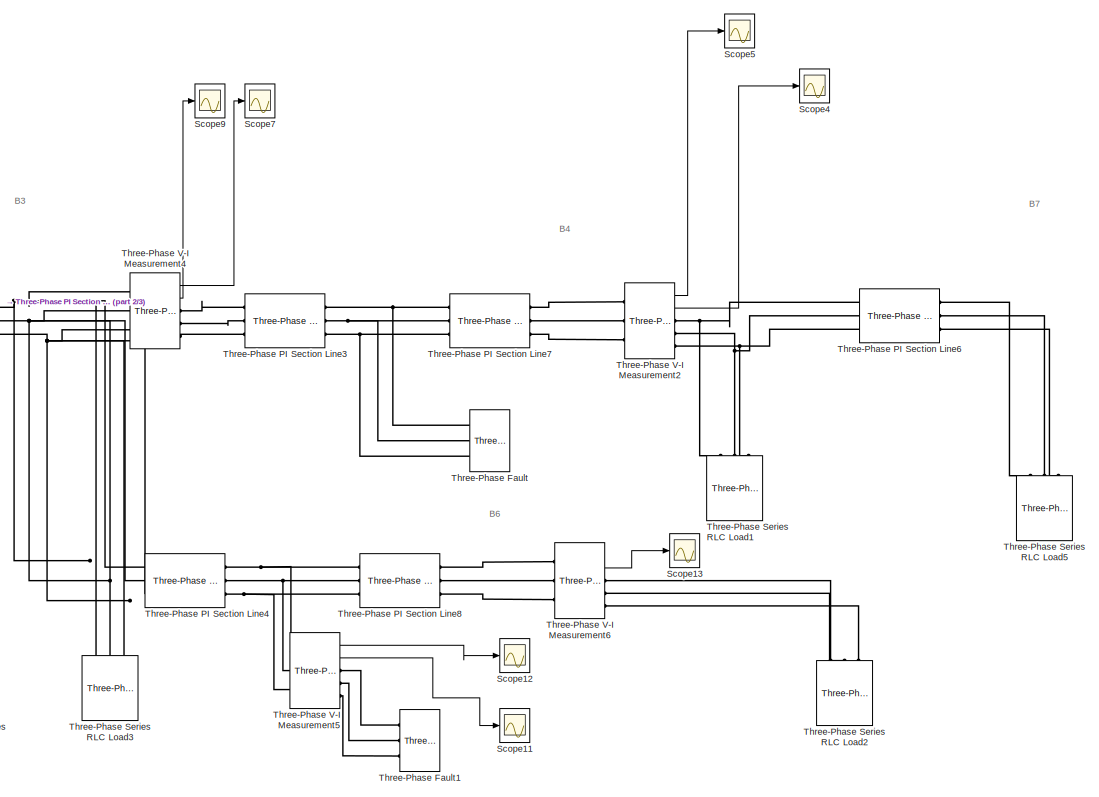
[diagram: root canvas - part 1/3, right side, full height]
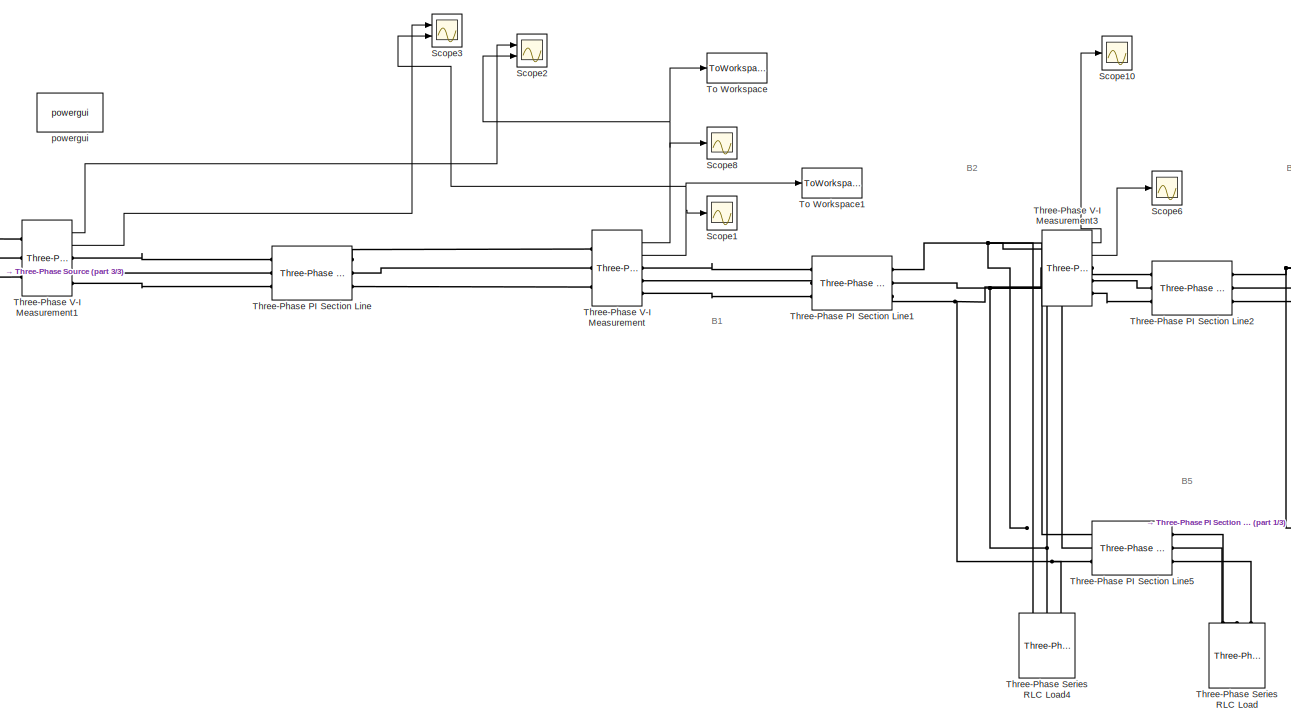
[diagram: root canvas - part 2/3, center side, full height]
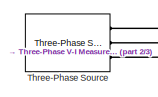
[diagram: root canvas - part 3/3, middle left region]
MODEL slx_acf07688941c
KIND model
CONFIG AbsTol = auto
CONFIG FixedStep = auto
CONFIG MaxStep = auto
CONFIG MinStep = auto
CONFIG RelTol = 1e-3
CONFIG SampleTimeConstraint = Unconstrained
CONFIG Solver = ode45
CONFIG SolverMode = Auto
CONFIG SolverName = ode45
CONFIG StartTime = 0.0
CONFIG StopTime = 0.16
BLOCK [Scope] Scope1
  Floating = off
  LimitDataPoints = off
  NumInputPorts = 1
  Ports = [1]
  TimeRange = 0.16
  YMax = 20000
  YMin = -20000
  ZoomMode = yonly
BLOCK [Scope] Scope10
  Floating = off
  LimitDataPoints = off
  NumInputPorts = 1
  Ports = [1]
  SaveName = ScopeData9
  YMax = 20000
  YMin = -20000
  ZoomMode = yonly
BLOCK [Scope] Scope11
  Floating = off
  LimitDataPoints = off
  NumInputPorts = 1
  Ports = [1]
  SaveName = ScopeData10
  YMax = 20000
  YMin = -20000
  ZoomMode = yonly
BLOCK [Scope] Scope12
  Floating = off
  LimitDataPoints = off
  NumInputPorts = 1
  Ports = [1]
  SaveName = ScopeData11
  YMax = 20000
  YMin = -20000
  ZoomMode = yonly
BLOCK [Scope] Scope13
  Floating = off
  LimitDataPoints = off
  NumInputPorts = 1
  Ports = [1]
  SaveName = ScopeData12
  YMax = 20000
  YMin = -20000
  ZoomMode = yonly
BLOCK [Scope] Scope2
  Floating = off
  LimitDataPoints = off
  NumInputPorts = 2
  Ports = [2]
  SaveName = ScopeData1
  YMax = 20000~5
  YMin = -20000~-5
  ZoomMode = yonly
BLOCK [Scope] Scope3
  Floating = off
  LimitDataPoints = off
  NumInputPorts = 2
  Ports = [2]
  SaveName = ScopeData2
  YMax = 20000~5
  YMin = -20000~-5
  ZoomMode = yonly
BLOCK [Scope] Scope4
  Floating = off
  LimitDataPoints = off
  NumInputPorts = 1
  Ports = [1]
  SaveName = ScopeData3
  YMax = 20000
  YMin = -20000
  ZoomMode = yonly
BLOCK [Scope] Scope5
  Floating = off
  LimitDataPoints = off
  NumInputPorts = 1
  Ports = [1]
  SaveName = ScopeData4
  YMax = 20000
  YMin = -20000
  ZoomMode = yonly
BLOCK [Scope] Scope6
  Floating = off
  LimitDataPoints = off
  NumInputPorts = 1
  Ports = [1]
  SaveName = ScopeData5
  YMax = 20000
  YMin = -20000
  ZoomMode = yonly
BLOCK [Scope] Scope7
  Floating = off
  LimitDataPoints = off
  NumInputPorts = 1
  Ports = [1]
  SaveName = ScopeData6
  YMax = 20000
  YMin = -20000
  ZoomMode = yonly
BLOCK [Scope] Scope8
  Floating = off
  LimitDataPoints = off
  NumInputPorts = 1
  Ports = [1]
  SaveName = ScopeData8
  YMax = 20000
  YMin = -20000
BLOCK [Scope] Scope9
  Floating = off
  LimitDataPoints = off
  NumInputPorts = 1
  Ports = [1]
  SaveName = ScopeData7
  YMax = 20000
  YMin = -20000
  ZoomMode = yonly
BLOCK [Reference] Three-Phase Fault  REF=powerlib/Elements/Three-Phase Fault
  External = off
  FaultA = off
  FaultB = off
  FaultC = off
  FaultResistance = 3
  GroundFault = off
  GroundResistance = 0.01
  InitialStates = 0
  Measurements = None
  Ports = [0, 0, 0, 0, 0, 3]
  SnubberCapacitance = inf
  SnubberResistance = 1e6
  SourceBlock = powerlib/Elements/Three-Phase Fault
  SourceType = Three-Phase Fault
  SwitchStatus = NaN
  SwitchTimes = [5/60  9/60]
BLOCK [Reference] Three-Phase Fault1  REF=powerlib/Elements/Three-Phase Fault
  External = off
  FaultA = on
  FaultB = off
  FaultC = off
  FaultResistance = 500
  GroundFault = on
  GroundResistance = 0.01
  InitialStates = 0
  Measurements = None
  Ports = [0, 0, 0, 0, 0, 3]
  SnubberCapacitance = inf
  SnubberResistance = 1e6
  SourceBlock = powerlib/Elements/Three-Phase Fault
  SourceType = Three-Phase Fault
  SwitchStatus = NaN
  SwitchTimes = [5/60  9/60]
BLOCK [Reference] Three-Phase PI Section Line  REF=powerlib/Elements/Three-Phase
PI Section Line
  AttributesFormatString = \n
  Capacitances = [7.4e-19 3.8e-19]
  Frequency = 60
  Inductances = [ 0.9337e-3  4.1264e-3]
  LConnTagsString = a|b|c
  Length = 1
  Ports = [0, 0, 0, 0, 0, 3, 3]
  RConnTagsString = A|B|C
  Resistances = [ 0.01273 0.3864]
  SourceBlock = powerlib/Elements/Three-Phase\nPI Section Line
  SourceType = Three-Phase PI Section Line
BLOCK [Reference] Three-Phase PI Section Line1  REF=powerlib/Elements/Three-Phase
PI Section Line
  AttributesFormatString = \n
  Capacitances = [12.74e-19 7.751e-19]
  Frequency = 60
  Inductances = [ 0.9337e-3  4.1264e-3]
  LConnTagsString = a|b|c
  Length = 30
  Ports = [0, 0, 0, 0, 0, 3, 3]
  RConnTagsString = A|B|C
  Resistances = [ 0.01273 0.3864]
  SourceBlock = powerlib/Elements/Three-Phase\nPI Section Line
  SourceType = Three-Phase PI Section Line
BLOCK [Reference] Three-Phase PI Section Line2  REF=powerlib/Elements/Three-Phase
PI Section Line
  AttributesFormatString = \n
  Capacitances = [12.74e-19 7.751e-19]
  Frequency = 60
  Inductances = [ 0.9337e-3  4.1264e-3]
  LConnTagsString = a|b|c
  Length = 15
  Ports = [0, 0, 0, 0, 0, 3, 3]
  RConnTagsString = A|B|C
  Resistances = [ 0.01273 0.3864]
  SourceBlock = powerlib/Elements/Three-Phase\nPI Section Line
  SourceType = Three-Phase PI Section Line
BLOCK [Reference] Three-Phase PI Section Line3  REF=powerlib/Elements/Three-Phase
PI Section Line
  AttributesFormatString = \n
  Capacitances = [12.74e-19 7.751e-19]
  Frequency = 60
  Inductances = [ 0.9337e-3  4.1264e-3]
  LConnTagsString = a|b|c
  Length = 5
  Ports = [0, 0, 0, 0, 0, 3, 3]
  RConnTagsString = A|B|C
  Resistances = [ 0.01273 0.3864]
  SourceBlock = powerlib/Elements/Three-Phase\nPI Section Line
  SourceType = Three-Phase PI Section Line
BLOCK [Reference] Three-Phase PI Section Line4  REF=powerlib/Elements/Three-Phase
PI Section Line
  AttributesFormatString = \n
  Capacitances = [12.74e-19 7.751e-19]
  Frequency = 60
  Inductances = [ 0.9337e-3  4.1264e-3]
  LConnTagsString = a|b|c
  Length = 15
  Ports = [0, 0, 0, 0, 0, 3, 3]
  RConnTagsString = A|B|C
  Resistances = [ 0.01273 0.3864]
  SourceBlock = powerlib/Elements/Three-Phase\nPI Section Line
  SourceType = Three-Phase PI Section Line
BLOCK [Reference] Three-Phase PI Section Line5  REF=powerlib/Elements/Three-Phase
PI Section Line
  AttributesFormatString = \n
  Capacitances = [12.74e-19 7.751e-19]
  Frequency = 60
  Inductances = [ 0.9337e-3  4.1264e-3]
  LConnTagsString = a|b|c
  Length = 8
  Ports = [0, 0, 0, 0, 0, 3, 3]
  RConnTagsString = A|B|C
  Resistances = [ 0.01273 0.3864]
  SourceBlock = powerlib/Elements/Three-Phase\nPI Section Line
  SourceType = Three-Phase PI Section Line
BLOCK [Reference] Three-Phase PI Section Line6  REF=powerlib/Elements/Three-Phase
PI Section Line
  AttributesFormatString = \n
  Capacitances = [12.74e-19 7.751e-19]
  Frequency = 60
  Inductances = [ 0.9337e-3  4.1264e-3]
  LConnTagsString = a|b|c
  Length = 19
  Ports = [0, 0, 0, 0, 0, 3, 3]
  RConnTagsString = A|B|C
  Resistances = [ 0.01273 0.3864]
  SourceBlock = powerlib/Elements/Three-Phase\nPI Section Line
  SourceType = Three-Phase PI Section Line
BLOCK [Reference] Three-Phase PI Section Line7  REF=powerlib/Elements/Three-Phase
PI Section Line
  AttributesFormatString = \n
  Capacitances = [12.74e-19 7.751e-19]
  Frequency = 60
  Inductances = [ 0.9337e-3  4.1264e-3]
  LConnTagsString = a|b|c
  Length = 5
  Ports = [0, 0, 0, 0, 0, 3, 3]
  RConnTagsString = A|B|C
  Resistances = [ 0.01273 0.3864]
  SourceBlock = powerlib/Elements/Three-Phase\nPI Section Line
  SourceType = Three-Phase PI Section Line
BLOCK [Reference] Three-Phase PI Section Line8  REF=powerlib/Elements/Three-Phase
PI Section Line
  AttributesFormatString = \n
  Capacitances = [12.74e-19 7.751e-19]
  Frequency = 60
  Inductances = [ 0.9337e-3  4.1264e-3]
  LConnTagsString = a|b|c
  Length = 5
  Ports = [0, 0, 0, 0, 0, 3, 3]
  RConnTagsString = A|B|C
  Resistances = [ 0.01273 0.3864]
  SourceBlock = powerlib/Elements/Three-Phase\nPI Section Line
  SourceType = Three-Phase PI Section Line
BLOCK [Reference] Three-Phase Series RLC Load  REF=powerlib/Elements/Three-Phase
Series RLC Load
  ActivePower = 8e3
  AttributesFormatString = \n
  CapacitivePower = 0
  Configuration = Y (grounded)
  InductivePower = 100
  LConnTagsString = A|B|C
  LoadType = constant Z
  Measurements = None
  NominalFrequency = 60
  NominalVoltage = 14300
  Ports = [0, 0, 0, 0, 0, 3]
  SourceBlock = powerlib/Elements/Three-Phase\nSeries RLC Load
  SourceType = Three-Phase Series RLC Load
BLOCK [Reference] Three-Phase Series RLC Load1  REF=powerlib/Elements/Three-Phase
Series RLC Load
  ActivePower = 8e3
  AttributesFormatString = \n
  CapacitivePower = 0
  Configuration = Y (grounded)
  InductivePower = 100
  LConnTagsString = A|B|C
  LoadType = constant Z
  Measurements = None
  NominalFrequency = 60
  NominalVoltage = 14300
  Ports = [0, 0, 0, 0, 0, 3]
  SourceBlock = powerlib/Elements/Three-Phase\nSeries RLC Load
  SourceType = Three-Phase Series RLC Load
BLOCK [Reference] Three-Phase Series RLC Load2  REF=powerlib/Elements/Three-Phase
Series RLC Load
  ActivePower = 8e3
  AttributesFormatString = \n
  CapacitivePower = 0
  Configuration = Y (grounded)
  InductivePower = 100
  LConnTagsString = A|B|C
  LoadType = constant Z
  Measurements = None
  NominalFrequency = 60
  NominalVoltage = 14300
  Ports = [0, 0, 0, 0, 0, 3]
  SourceBlock = powerlib/Elements/Three-Phase\nSeries RLC Load
  SourceType = Three-Phase Series RLC Load
BLOCK [Reference] Three-Phase Series RLC Load3  REF=powerlib/Elements/Three-Phase
Series RLC Load
  ActivePower = 8e3
  AttributesFormatString = \n
  CapacitivePower = 0
  Configuration = Y (grounded)
  InductivePower = 100
  LConnTagsString = A|B|C
  LoadType = constant Z
  Measurements = None
  NominalFrequency = 60
  NominalVoltage = 14300
  Ports = [0, 0, 0, 0, 0, 3]
  SourceBlock = powerlib/Elements/Three-Phase\nSeries RLC Load
  SourceType = Three-Phase Series RLC Load
BLOCK [Reference] Three-Phase Series RLC Load4  REF=powerlib/Elements/Three-Phase
Series RLC Load
  ActivePower = 8e3
  AttributesFormatString = \n
  CapacitivePower = 0
  Configuration = Y (grounded)
  InductivePower = 100
  LConnTagsString = A|B|C
  LoadType = constant Z
  Measurements = None
  NominalFrequency = 60
  NominalVoltage = 14300
  Ports = [0, 0, 0, 0, 0, 3]
  SourceBlock = powerlib/Elements/Three-Phase\nSeries RLC Load
  SourceType = Three-Phase Series RLC Load
BLOCK [Reference] Three-Phase Series RLC Load5  REF=powerlib/Elements/Three-Phase
Series RLC Load
  ActivePower = 8e3
  AttributesFormatString = \n
  CapacitivePower = 0
  Configuration = Y (grounded)
  InductivePower = 100
  LConnTagsString = A|B|C
  LoadType = constant Z
  Measurements = None
  NominalFrequency = 60
  NominalVoltage = 14300
  Ports = [0, 0, 0, 0, 0, 3]
  SourceBlock = powerlib/Elements/Three-Phase\nSeries RLC Load
  SourceType = Three-Phase Series RLC Load
BLOCK [Reference] Three-Phase Source  REF=powerlib/Electrical
Sources/Three-Phase Source
  BaseVoltage = 115000
  BusType = swing
  Frequency = 60
  Inductance = 16.58e-3
  InternalConnection = Yg
  PhaseAngle = 0
  Ports = [0, 0, 0, 0, 0, 0, 3]
  Pref = 0
  Qmax = inf
  Qmin = -inf
  Qref = 0
  Resistance = 0.8929
  ShortCircuitLevel = 100e6
  SourceBlock = powerlib/Electrical\nSources/Three-Phase Source
  SourceType = Three-Phase Source
  SpecifyImpedance = on
  Voltage = 14300
  XRratio = 7
BLOCK [Reference] Three-Phase V-I Measurement  REF=powerlib/Measurements/Three-Phase
V-I Measurement
  CurrentMeasurement = yes
  Ipu = off
  LabelI = Iabc
  LabelV = Vabc
  OutputType = Complex
  PSBequivalent = 0
  Pbase = 100e6
  PhasorSimulation = off
  Ports = [0, 2, 0, 0, 0, 3, 3]
  SetLabelI = off
  SetLabelV = off
  SourceBlock = powerlib/Measurements/Three-Phase\nV-I Measurement
  SourceType = Three-Phase VI Measurement
  Vbase = 500e3
  VoltageMeasurement = phase-to-ground
  Vpu = off
  VpuLL = off
BLOCK [Reference] Three-Phase V-I Measurement1  REF=powerlib/Measurements/Three-Phase
V-I Measurement
  CurrentMeasurement = yes
  Ipu = off
  LabelI = Iabc
  LabelV = Vabc
  OutputType = Complex
  PSBequivalent = 0
  Pbase = 100e6
  PhasorSimulation = off
  Ports = [0, 2, 0, 0, 0, 3, 3]
  SetLabelI = off
  SetLabelV = off
  SourceBlock = powerlib/Measurements/Three-Phase\nV-I Measurement
  SourceType = Three-Phase VI Measurement
  Vbase = 500e3
  VoltageMeasurement = phase-to-ground
  Vpu = off
  VpuLL = off
BLOCK [Reference] Three-Phase V-I Measurement2  REF=powerlib/Measurements/Three-Phase
V-I Measurement
  CurrentMeasurement = yes
  Ipu = off
  LabelI = Iabc
  LabelV = Vabc
  OutputType = Complex
  PSBequivalent = 0
  Pbase = 100e6
  PhasorSimulation = off
  Ports = [0, 2, 0, 0, 0, 3, 3]
  SetLabelI = off
  SetLabelV = off
  SourceBlock = powerlib/Measurements/Three-Phase\nV-I Measurement
  SourceType = Three-Phase VI Measurement
  Vbase = 500e3
  VoltageMeasurement = phase-to-ground
  Vpu = off
  VpuLL = off
BLOCK [Reference] Three-Phase V-I Measurement3  REF=powerlib/Measurements/Three-Phase
V-I Measurement
  CurrentMeasurement = yes
  Ipu = off
  LabelI = Iabc
  LabelV = Vabc
  OutputType = Complex
  PSBequivalent = 0
  Pbase = 100e6
  PhasorSimulation = off
  Ports = [0, 2, 0, 0, 0, 3, 3]
  SetLabelI = off
  SetLabelV = off
  SourceBlock = powerlib/Measurements/Three-Phase\nV-I Measurement
  SourceType = Three-Phase VI Measurement
  Vbase = 500e3
  VoltageMeasurement = phase-to-ground
  Vpu = off
  VpuLL = off
BLOCK [Reference] Three-Phase V-I Measurement4  REF=powerlib/Measurements/Three-Phase
V-I Measurement
  CurrentMeasurement = yes
  Ipu = off
  LabelI = Iabc
  LabelV = Vabc
  OutputType = Complex
  PSBequivalent = 0
  Pbase = 100e6
  PhasorSimulation = off
  Ports = [0, 2, 0, 0, 0, 3, 3]
  SetLabelI = off
  SetLabelV = off
  SourceBlock = powerlib/Measurements/Three-Phase\nV-I Measurement
  SourceType = Three-Phase VI Measurement
  Vbase = 500e3
  VoltageMeasurement = phase-to-ground
  Vpu = off
  VpuLL = off
BLOCK [Reference] Three-Phase V-I Measurement5  REF=powerlib/Measurements/Three-Phase
V-I Measurement
  CurrentMeasurement = yes
  Ipu = off
  LabelI = Iabc
  LabelV = Vabc
  OutputType = Complex
  PSBequivalent = 0
  Pbase = 100e6
  PhasorSimulation = off
  Ports = [0, 2, 0, 0, 0, 3, 3]
  SetLabelI = off
  SetLabelV = off
  SourceBlock = powerlib/Measurements/Three-Phase\nV-I Measurement
  SourceType = Three-Phase VI Measurement
  Vbase = 500e3
  VoltageMeasurement = phase-to-phase
  Vpu = off
  VpuLL = off
BLOCK [Reference] Three-Phase V-I Measurement6  REF=powerlib/Measurements/Three-Phase
V-I Measurement
  CurrentMeasurement = yes
  Ipu = off
  LabelI = Iabc
  LabelV = Vabc
  OutputType = Complex
  PSBequivalent = 0
  Pbase = 100e6
  PhasorSimulation = off
  Ports = [0, 2, 0, 0, 0, 3, 3]
  SetLabelI = off
  SetLabelV = off
  SourceBlock = powerlib/Measurements/Three-Phase\nV-I Measurement
  SourceType = Three-Phase VI Measurement
  Vbase = 500e3
  VoltageMeasurement = phase-to-phase
  Vpu = off
  VpuLL = off
BLOCK [ToWorkspace] To Workspace
  FixptAsFi = on
  MaxDataPoints = inf
  Ports = [1]
  SampleTime = -1
  VariableName = V
BLOCK [ToWorkspace] To Workspace1
  FixptAsFi = on
  MaxDataPoints = inf
  Ports = [1]
  SampleTime = -1
  VariableName = I
BLOCK [Reference] powergui  REF=powerlib/powergui
  DisableRonSwitches = off
  DisableSnubberDevices = off
  DisableVfSwitches = off
  DisplayEquations = off
  DisplayStyle = 1
  EnableUseOfTLC = off
  ErrMax = 1e-4
  Frange = [0:2:500]
  FreqAxis = off
  FunctionMessages = off
  HookPort = off
  Interpol = off
  Iterations = 50
  MaxFrequency = 1000
  Pbase = 100e6
  Ports = []
  Priority = 1
  ResistiveCurrentMeasurement = off
  RestoreLinks = warning
  RmsSteady = 1
  SPID = off
  SampleTime = 1/(60*32)
  ShowGrid = off
  SolverType = Tustin
  SourceBlock = powerlib/powergui
  SourceType = PSB option menu block
  StartTime = 0.0
  SwTol = 0
  Ts = 0
  UnitsV = kV
  UnitsW = MW
  UserDataPersistent = on
  Xlog = on
  Ylog = off
  ZoomFFT = off
  buscounter = 0
  cycles = 1
  display = off
  echomessages = off
  frequency = 60
  frequencyindice = 60
  frequencyindicesteady = 1
  fundamental = 60
  methode = off
  save = off
  structure = 0
  variable = ZData
  x0status = blocks
ANNOTATION (root): B1
ANNOTATION (root): B2
ANNOTATION (root): B3
ANNOTATION (root): B4
ANNOTATION (root): B5
ANNOTATION (root): B6
ANNOTATION (root): B7
LINE Three-Phase V-I Measurement1:1 -> Scope2:1
LINE Three-Phase V-I Measurement1:2 -> Scope3:1
LINE Three-Phase V-I Measurement2:1 -> Scope5:1
LINE Three-Phase V-I Measurement2:2 -> Scope4:1
LINE Three-Phase V-I Measurement3:1 -> Scope10:1
LINE Three-Phase V-I Measurement3:2 -> Scope6:1
LINE Three-Phase V-I Measurement4:1 -> Scope7:1
LINE Three-Phase V-I Measurement4:2 -> Scope9:1
LINE Three-Phase V-I Measurement5:1 -> Scope12:1
LINE Three-Phase V-I Measurement5:2 -> Scope11:1
LINE Three-Phase V-I Measurement6:2 -> Scope13:1
NET Three-Phase V-I Measurement:1 -> Scope2:2, Scope8:1, To Workspace:1
NET Three-Phase V-I Measurement:2 -> Scope1:1, Scope3:2, To Workspace1:1
PLINE Three-Phase Fault1:LConn1 -- Three-Phase V-I Measurement5:RConn1
PLINE Three-Phase Fault1:LConn2 -- Three-Phase V-I Measurement5:RConn2
PLINE Three-Phase Fault1:LConn3 -- Three-Phase V-I Measurement5:RConn3
PNET net1: Three-Phase Fault:LConn1 -- Three-Phase PI Section Line3:RConn1 -- Three-Phase PI Section Line7:LConn1
PNET net2: Three-Phase Fault:LConn2 -- Three-Phase PI Section Line3:RConn2 -- Three-Phase PI Section Line7:LConn2
PNET net3: Three-Phase Fault:LConn3 -- Three-Phase PI Section Line3:RConn3 -- Three-Phase PI Section Line7:LConn3
PLINE Three-Phase PI Section Line1:LConn1 -- Three-Phase V-I Measurement:RConn1
PLINE Three-Phase PI Section Line1:LConn2 -- Three-Phase V-I Measurement:RConn2
PLINE Three-Phase PI Section Line1:LConn3 -- Three-Phase V-I Measurement:RConn3
PNET net4: Three-Phase PI Section Line1:RConn1 -- Three-Phase PI Section Line5:LConn1 -- Three-Phase Series RLC Load4:LConn1 -- Three-Phase V-I Measurement3:LConn1
PNET net5: Three-Phase PI Section Line1:RConn2 -- Three-Phase PI Section Line5:LConn2 -- Three-Phase Series RLC Load4:LConn2 -- Three-Phase V-I Measurement3:LConn2
PNET net6: Three-Phase PI Section Line1:RConn3 -- Three-Phase PI Section Line5:LConn3 -- Three-Phase Series RLC Load4:LConn3 -- Three-Phase V-I Measurement3:LConn3
PLINE Three-Phase PI Section Line2:LConn1 -- Three-Phase V-I Measurement3:RConn1
PLINE Three-Phase PI Section Line2:LConn2 -- Three-Phase V-I Measurement3:RConn2
PLINE Three-Phase PI Section Line2:LConn3 -- Three-Phase V-I Measurement3:RConn3
PNET net7: Three-Phase PI Section Line2:RConn1 -- Three-Phase PI Section Line4:LConn1 -- Three-Phase Series RLC Load3:LConn1 -- Three-Phase V-I Measurement4:LConn1
PNET net8: Three-Phase PI Section Line2:RConn2 -- Three-Phase PI Section Line4:LConn2 -- Three-Phase Series RLC Load3:LConn2 -- Three-Phase V-I Measurement4:LConn2
PNET net9: Three-Phase PI Section Line2:RConn3 -- Three-Phase PI Section Line4:LConn3 -- Three-Phase Series RLC Load3:LConn3 -- Three-Phase V-I Measurement4:LConn3
PLINE Three-Phase PI Section Line3:LConn1 -- Three-Phase V-I Measurement4:RConn1
PLINE Three-Phase PI Section Line3:LConn2 -- Three-Phase V-I Measurement4:RConn2
PLINE Three-Phase PI Section Line3:LConn3 -- Three-Phase V-I Measurement4:RConn3
PNET net10: Three-Phase PI Section Line4:RConn1 -- Three-Phase PI Section Line8:LConn1 -- Three-Phase V-I Measurement5:LConn1
PNET net11: Three-Phase PI Section Line4:RConn2 -- Three-Phase PI Section Line8:LConn2 -- Three-Phase V-I Measurement5:LConn2
PNET net12: Three-Phase PI Section Line4:RConn3 -- Three-Phase PI Section Line8:LConn3 -- Three-Phase V-I Measurement5:LConn3
PLINE Three-Phase PI Section Line5:RConn1 -- Three-Phase Series RLC Load:LConn1
PLINE Three-Phase PI Section Line5:RConn2 -- Three-Phase Series RLC Load:LConn2
PLINE Three-Phase PI Section Line5:RConn3 -- Three-Phase Series RLC Load:LConn3
PNET net13: Three-Phase PI Section Line6:LConn1 -- Three-Phase Series RLC Load1:LConn1 -- Three-Phase V-I Measurement2:RConn1
PNET net14: Three-Phase PI Section Line6:LConn2 -- Three-Phase Series RLC Load1:LConn2 -- Three-Phase V-I Measurement2:RConn2
PNET net15: Three-Phase PI Section Line6:LConn3 -- Three-Phase Series RLC Load1:LConn3 -- Three-Phase V-I Measurement2:RConn3
PLINE Three-Phase PI Section Line6:RConn1 -- Three-Phase Series RLC Load5:LConn1
PLINE Three-Phase PI Section Line6:RConn2 -- Three-Phase Series RLC Load5:LConn2
PLINE Three-Phase PI Section Line6:RConn3 -- Three-Phase Series RLC Load5:LConn3
PLINE Three-Phase PI Section Line7:RConn1 -- Three-Phase V-I Measurement2:LConn1
PLINE Three-Phase PI Section Line7:RConn2 -- Three-Phase V-I Measurement2:LConn2
PLINE Three-Phase PI Section Line7:RConn3 -- Three-Phase V-I Measurement2:LConn3
PLINE Three-Phase PI Section Line8:RConn1 -- Three-Phase V-I Measurement6:LConn1
PLINE Three-Phase PI Section Line8:RConn2 -- Three-Phase V-I Measurement6:LConn2
PLINE Three-Phase PI Section Line8:RConn3 -- Three-Phase V-I Measurement6:LConn3
PLINE Three-Phase PI Section Line:LConn1 -- Three-Phase V-I Measurement1:RConn1
PLINE Three-Phase PI Section Line:LConn2 -- Three-Phase V-I Measurement1:RConn2
PLINE Three-Phase PI Section Line:LConn3 -- Three-Phase V-I Measurement1:RConn3
PLINE Three-Phase PI Section Line:RConn1 -- Three-Phase V-I Measurement:LConn1
PLINE Three-Phase PI Section Line:RConn2 -- Three-Phase V-I Measurement:LConn2
PLINE Three-Phase PI Section Line:RConn3 -- Three-Phase V-I Measurement:LConn3
PLINE Three-Phase Series RLC Load2:LConn1 -- Three-Phase V-I Measurement6:RConn1
PLINE Three-Phase Series RLC Load2:LConn2 -- Three-Phase V-I Measurement6:RConn2
PLINE Three-Phase Series RLC Load2:LConn3 -- Three-Phase V-I Measurement6:RConn3
PLINE Three-Phase Source:RConn1 -- Three-Phase V-I Measurement1:LConn1
PLINE Three-Phase Source:RConn2 -- Three-Phase V-I Measurement1:LConn2
PLINE Three-Phase Source:RConn3 -- Three-Phase V-I Measurement1:LConn3
note: NET lines group one-source signal fan-out (src -> all destinations, sorted); 1:1 wires keep LINE; PNET lines group multi-terminal physical nets as a canonical sorted terminal list (undirected conserving connections); 2-terminal nets keep the pairwise PLINE form
